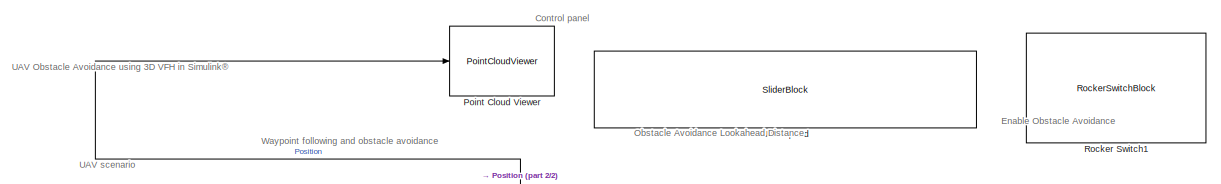
[diagram: root canvas - part 1/2, full width, top band]
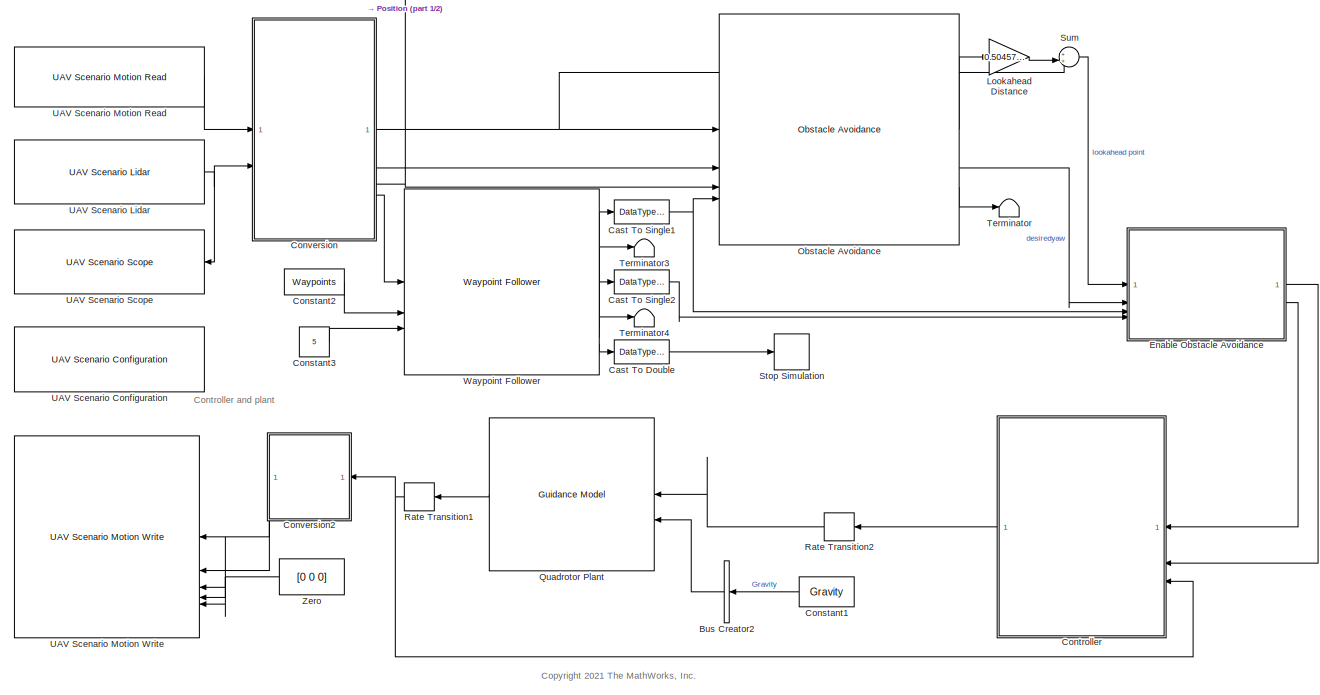
[diagram: root canvas - part 2/2, most of the canvas]
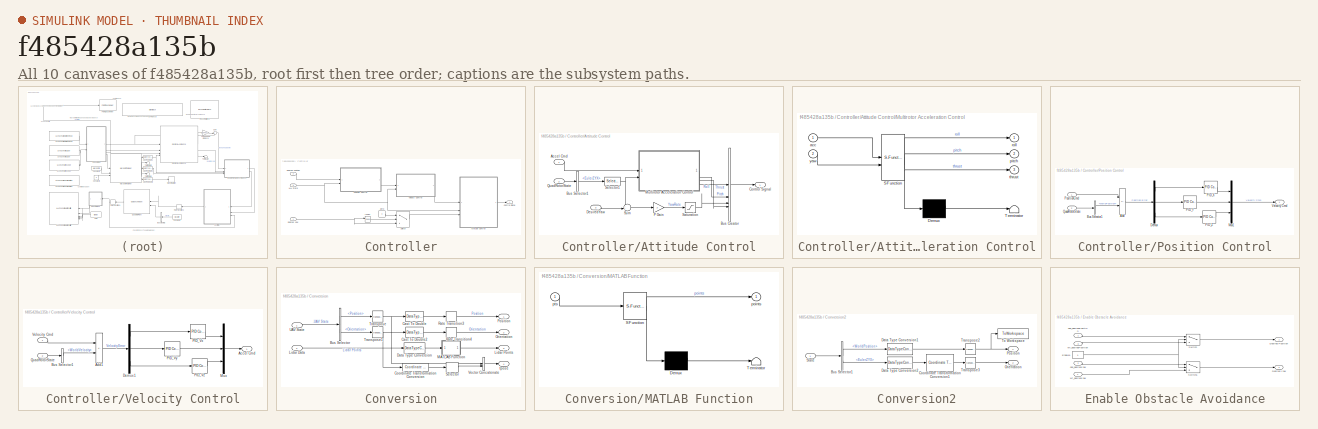
[diagram: thumbnail index - all 10 canvases of the model, root first then tree order]
MODEL slx_f485428a135b
KIND model
CONFIG AbsTol = auto
CONFIG EnableMultiTasking = off
CONFIG FixedStep = auto
CONFIG MaxStep = auto
CONFIG MinStep = auto
CONFIG RelTol = 1e-3
CONFIG SampleTimeConstraint = Unconstrained
CONFIG SolverName = VariableStepAuto
CONFIG StartTime = 0.0
CONFIG StopTime = inf
BLOCK [BusCreator] Bus Creator2
  DisplayOption = bar
  InheritFromInputs = on
  Inputs = 1
  NonVirtualBus = on
  OutDataTypeStr = Bus: uavGuidanceEnvironmentBus
BLOCK [DataTypeConversion] Cast To Double
  OutDataTypeStr = double
  RndMeth = Floor
  SaturateOnIntegerOverflow = off
BLOCK [DataTypeConversion] Cast To Single1
  OutDataTypeStr = single
  RndMeth = Floor
  SaturateOnIntegerOverflow = off
BLOCK [DataTypeConversion] Cast To Single2
  OutDataTypeStr = single
  RndMeth = Floor
  SaturateOnIntegerOverflow = off
BLOCK [Constant] Constant1
  AttributesFormatString = %<Value>
  OutDataTypeStr = single
  Value = Gravity
BLOCK [Constant] Constant2
  Value = Waypoints
BLOCK [Constant] Constant3
  Value = 5
BLOCK [SubSystem] Controller
BLOCK [SubSystem] Controller/Attitude Control
BLOCK [Inport] Controller/Attitude Control/Accel Cmd
BLOCK [BusCreator] Controller/Attitude Control/Bus Creator
  DisplayOption = bar
  InheritFromInputs = off
  Inputs = 4
  NonVirtualBus = on
  OutDataTypeStr = Bus: uavGuidanceControlBus
BLOCK [BusSelector] Controller/Attitude Control/Bus Selector1
  NameLocation = top
  OutputSignals = EulerZYX
BLOCK [Outport] Controller/Attitude Control/Control Signal
BLOCK [Inport] Controller/Attitude Control/DesiredYaw
  Port = 3
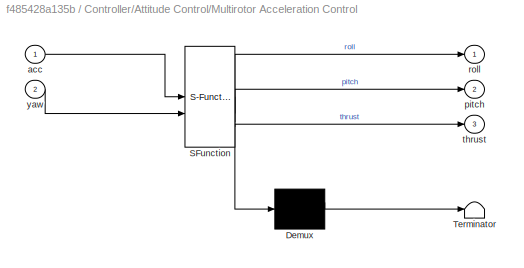
BLOCK [SubSystem] Controller/Attitude Control/Multirotor Acceleration Control
  ErrorFcn = Stateflow.Translate.translate
  PermitHierarchicalResolution = ExplicitOnly
  SFBlockType = MATLAB Function
  TreatAsAtomicUnit = on
BLOCK [Demux] Controller/Attitude Control/Multirotor Acceleration Control/ Demux 
  Outputs = 1
BLOCK [S-Function] Controller/Attitude Control/Multirotor Acceleration Control/ SFunction 
  EnableBusSupport = on
  FunctionName = sf_sfun
  Parameters = DroneMass,Gravity
  PortCounts = [2 4]
  SFcnIsStateOwnerBlock = off
  SFunctionDeploymentMode = off
  Tag = Stateflow S-Function 5
BLOCK [Terminator] Controller/Attitude Control/Multirotor Acceleration Control/ Terminator 
BLOCK [Inport] Controller/Attitude Control/Multirotor Acceleration Control/acc
BLOCK [Outport] Controller/Attitude Control/Multirotor Acceleration Control/pitch
  Port = 2
  VectorParamsAs1DForOutWhenUnconnected = off
BLOCK [Outport] Controller/Attitude Control/Multirotor Acceleration Control/roll
  VectorParamsAs1DForOutWhenUnconnected = off
BLOCK [Outport] Controller/Attitude Control/Multirotor Acceleration Control/thrust
  Port = 3
  VectorParamsAs1DForOutWhenUnconnected = off
BLOCK [Inport] Controller/Attitude Control/Multirotor Acceleration Control/yaw
  Port = 2
BLOCK [Gain] Controller/Attitude Control/P Gain
  Gain = 2
BLOCK [Inport] Controller/Attitude Control/QuadRotorState
  Port = 2
BLOCK [Saturate] Controller/Attitude Control/Saturation
BLOCK [Selector] Controller/Attitude Control/Selector1
  IndexOptions = Index vector (dialog)
  Indices = [1]
  InputPortWidth = 3
  OutputSizes = 1
BLOCK [Sum] Controller/Attitude Control/Sum
  Inputs = -+|
BLOCK [Outport] Controller/Control Signal
BLOCK [Inport] Controller/Desired Position
  Port = 2
BLOCK [Inport] Controller/Desired Yaw
BLOCK [RelationalOperator] Controller/IsNaN
  InputSameDT = off
  Operator = isNaN
  OutDataTypeStr = boolean
  RndMeth = Simplest
BLOCK [SubSystem] Controller/Position Control
BLOCK [Sum] Controller/Position Control/Add
  IconShape = rectangular
  Inputs = +-
BLOCK [BusSelector] Controller/Position Control/Bus Selector1
  NameLocation = top
  OutputSignals = WorldPosition
BLOCK [Demux] Controller/Position Control/Demux
  Outputs = 3
BLOCK [Mux] Controller/Position Control/Mux1
  DisplayOption = bar
  Inputs = 3
BLOCK [Reference] Controller/Position Control/PID_X  REF=slpidlib/PID Controller
  AttributesFormatString = P: %<P>, I: %<I>, D:%<D>
  SourceBlock = slpidlib/PID Controller
  SourceType = PID 1dof
BLOCK [Reference] Controller/Position Control/PID_Y  REF=slpidlib/PID Controller
  AttributesFormatString = P: %<P>, I: %<I>, D:%<D>
  SourceBlock = slpidlib/PID Controller
  SourceType = PID 1dof
BLOCK [Reference] Controller/Position Control/PID_Z  REF=slpidlib/PID Controller
  AttributesFormatString = P: %<P>, I: %<I>, D:%<D>
  SourceBlock = slpidlib/PID Controller
  SourceType = PID 1dof
BLOCK [Inport] Controller/Position Control/PositionCmd
BLOCK [Inport] Controller/Position Control/QuadRotorState
  Port = 2
BLOCK [Outport] Controller/Position Control/Velocity Cmd
BLOCK [Switch] Controller/Switch
  Criteria = u2 ~= 0
  InputSameDT = off
  SaturateOnIntegerOverflow = off
BLOCK [Inport] Controller/UAV State
  Port = 3
BLOCK [SubSystem] Controller/Velocity Control
BLOCK [Outport] Controller/Velocity Control/Accel Cmd
BLOCK [Sum] Controller/Velocity Control/Add1
  IconShape = rectangular
  Inputs = +-
BLOCK [BusSelector] Controller/Velocity Control/Bus Selector1
  NameLocation = top
  OutputSignals = WorldVelocity
BLOCK [Demux] Controller/Velocity Control/Demux1
  Outputs = 3
BLOCK [Mux] Controller/Velocity Control/Mux
  DisplayOption = bar
  Inputs = 3
BLOCK [Reference] Controller/Velocity Control/PID_Vx  REF=slpidlib/PID Controller
  AttributesFormatString = P: %<P>, I: %<I>, D:%<D>
  SourceBlock = slpidlib/PID Controller
  SourceType = PID 1dof
BLOCK [Reference] Controller/Velocity Control/PID_Vy  REF=slpidlib/PID Controller
  AttributesFormatString = P: %<P>, I: %<I>, D:%<D>
  SourceBlock = slpidlib/PID Controller
  SourceType = PID 1dof
BLOCK [Reference] Controller/Velocity Control/PID_Vz  REF=slpidlib/PID Controller
  AttributesFormatString = P: %<P>, I: %<I>, D:%<D>
  SourceBlock = slpidlib/PID Controller
  SourceType = PID 1dof
BLOCK [Inport] Controller/Velocity Control/QuadRotorState
  Port = 2
BLOCK [Inport] Controller/Velocity Control/Velocity Cmd
BLOCK [Constant] Controller/Zero
  OutDataTypeStr = Inherit: Inherit via back propagation
  Value = 0
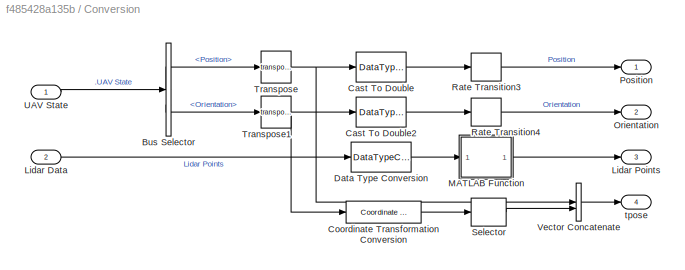
BLOCK [SubSystem] Conversion
BLOCK [BusSelector] Conversion/Bus Selector
  OutputSignals = Position,Orientation
BLOCK [DataTypeConversion] Conversion/Cast To Double
  OutDataTypeStr = single
  RndMeth = Floor
  SaturateOnIntegerOverflow = off
BLOCK [DataTypeConversion] Conversion/Cast To Double2
  OutDataTypeStr = single
  RndMeth = Floor
  SaturateOnIntegerOverflow = off
BLOCK [Reference] Conversion/Coordinate Transformation Conversion  REF=robotcorelib/Coordinate Transformation Conversion
  SourceBlock = robotcorelib/Coordinate Transformation Conversion
  SourceType = robotics.slcore.internal.block.CoordinateTransformationConversion
BLOCK [DataTypeConversion] Conversion/Data Type Conversion
  OutDataTypeStr = single
  RndMeth = Floor
  SaturateOnIntegerOverflow = off
BLOCK [Inport] Conversion/Lidar Data
  Port = 2
BLOCK [Outport] Conversion/Lidar Points
  Port = 3
BLOCK [SubSystem] Conversion/MATLAB Function
  ErrorFcn = Stateflow.Translate.translate
  PermitHierarchicalResolution = ExplicitOnly
  SFBlockType = MATLAB Function
  TreatAsAtomicUnit = on
BLOCK [Demux] Conversion/MATLAB Function/ Demux 
  Outputs = 1
BLOCK [S-Function] Conversion/MATLAB Function/ SFunction 
  EnableBusSupport = on
  FunctionName = sf_sfun
  PortCounts = [1 2]
  SFcnIsStateOwnerBlock = off
  SFunctionDeploymentMode = off
  Tag = Stateflow S-Function 2
BLOCK [Terminator] Conversion/MATLAB Function/ Terminator 
BLOCK [Outport] Conversion/MATLAB Function/points
BLOCK [Inport] Conversion/MATLAB Function/pts
BLOCK [Outport] Conversion/Orientation
  Port = 2
BLOCK [Outport] Conversion/Position
BLOCK [RateTransition] Conversion/Rate Transition3
  OutPortSampleTime = .1
BLOCK [RateTransition] Conversion/Rate Transition4
  OutPortSampleTime = 0.1
BLOCK [Selector] Conversion/Selector
  IndexOptions = Index vector (dialog)
  Indices = [1]
  InputPortWidth = 3
  OutputSizes = 1
BLOCK [Math] Conversion/Transpose
  Operator = transpose
BLOCK [Math] Conversion/Transpose1
  Operator = transpose
BLOCK [Inport] Conversion/UAV State
BLOCK [Concatenate] Conversion/Vector Concatenate
BLOCK [Outport] Conversion/tpose
  Port = 4
BLOCK [SubSystem] Conversion2
BLOCK [BusSelector] Conversion2/Bus Selector1
  OutputSignals = WorldPosition,EulerZYX
BLOCK [Reference] Conversion2/Coordinate Transformation Conversion1  REF=robotcorelib/Coordinate Transformation Conversion
  SourceBlock = robotcorelib/Coordinate Transformation Conversion
  SourceType = robotics.slcore.internal.block.CoordinateTransformationConversion
BLOCK [DataTypeConversion] Conversion2/Data Type Conversion1
  OutDataTypeStr = double
  RndMeth = Floor
  SaturateOnIntegerOverflow = off
BLOCK [DataTypeConversion] Conversion2/Data Type Conversion2
  OutDataTypeStr = double
  RndMeth = Floor
  SaturateOnIntegerOverflow = off
BLOCK [Outport] Conversion2/Orientation
  Port = 2
BLOCK [Outport] Conversion2/Position
BLOCK [Inport] Conversion2/State
BLOCK [ToWorkspace] Conversion2/To Workspace
  FixptAsFi = on
  MaxDataPoints = inf
  SampleTime = -1
  VariableName = trajectoryPoints
BLOCK [Math] Conversion2/Transpose2
  Operator = transpose
BLOCK [Math] Conversion2/Transpose3
  Operator = transpose
BLOCK [SubSystem] Enable Obstacle Avoidance
BLOCK [Outport] Enable Obstacle Avoidance/Desired Position
BLOCK [Outport] Enable Obstacle Avoidance/Desired Yaw
  Port = 2
BLOCK [Constant] Enable Obstacle Avoidance/Enable1
BLOCK [Switch] Enable Obstacle Avoidance/Switch
  Criteria = u2 > Threshold
  InputSameDT = off
  SaturateOnIntegerOverflow = off
BLOCK [Switch] Enable Obstacle Avoidance/Switch1
  Criteria = u2 > Threshold
  InputSameDT = off
  SaturateOnIntegerOverflow = off
BLOCK [Inport] Enable Obstacle Avoidance/obs_desiredPosition
BLOCK [Inport] Enable Obstacle Avoidance/obs_desiredYaw
  Port = 2
BLOCK [Inport] Enable Obstacle Avoidance/wf_desiredPosition
  Port = 3
BLOCK [Inport] Enable Obstacle Avoidance/wf_desiredYaw
  Port = 4
BLOCK [Gain] Lookahead Distance
  Gain = 0.5045735304323687
BLOCK [Reference] Obstacle Avoidance  REF=uavalgslib/Obstacle Avoidance
  SourceBlock = uavalgslib/Obstacle Avoidance
  SourceType = uav.sluav.internal.system.ObstacleAvoidance
BLOCK [PointCloudViewer] Point Cloud Viewer
  FigPos = [658 892 413 361]
  ScopeSpecificationString = vipscopes.PointCloudViewerScopeCfg('CurrentConfiguration', extmgr.ConfigurationSet(extmgr.Configuration('Core','General UI',true),extmgr.Configuration('Core','Source UI',true),extmgr.Configuration('Sources','WiredSimulink',true),extmgr.Configuration('Visuals','Point Cloud',true)),'Version','2023a','Position',[658 547 413 361])
BLOCK [Reference] Quadrotor Plant  REF=uavalgslib/Guidance Model
  SourceBlock = uavalgslib/Guidance Model
  SourceType = Guidance Model
BLOCK [RateTransition] Rate Transition1
  OutPortSampleTime = UAVSampleTime
BLOCK [RateTransition] Rate Transition2
  OutPortSampleTime = UAVSampleTime
BLOCK [RockerSwitchBlock] Rocker Switch1
  LabelPosition = Hide
  NameLocation = left
BLOCK [Stop] Stop Simulation
BLOCK [Sum] Sum
  Inputs = ++|
BLOCK [Terminator] Terminator
BLOCK [Terminator] Terminator3
BLOCK [Terminator] Terminator4
BLOCK [Reference] UAV Scenario Configuration  REF=uavsimlib/UAV Scenario Configuration
  Priority = -1
  SourceBlock = uavsimlib/UAV Scenario Configuration
  SourceType = UAV Scenario Configuration
BLOCK [Reference] UAV Scenario Lidar  REF=uavsimlib/UAV Scenario Lidar
  Priority = 1
  SourceBlock = uavsimlib/UAV Scenario Lidar
  SourceType = UAV Scenario Lidar
BLOCK [Reference] UAV Scenario Motion Read  REF=uavsimlib/UAV Scenario Motion Read
  Priority = 1
  SourceBlock = uavsimlib/UAV Scenario Motion Read
  SourceType = UAV Scenario Motion Read
BLOCK [Reference] UAV Scenario Motion Write  REF=uavsimlib/UAV Scenario Motion Write
  Priority = 0
  SourceBlock = uavsimlib/UAV Scenario Motion Write
  SourceType = UAV Scenario Motion Write
BLOCK [Reference] UAV Scenario Scope  REF=uavsimlib/UAV Scenario Scope
  Priority = 1
  SourceBlock = uavsimlib/UAV Scenario Scope
  SourceType = UAV Scenario Scope
BLOCK [SliderBlock] UAV Speed
  LabelPosition = Hide
  ScaleMax = .8
  ScaleMin = 0.0
  TickInterval = .2
BLOCK [Reference] Waypoint Follower  REF=uavalgslib/Waypoint Follower
  SourceBlock = uavalgslib/Waypoint Follower
  SourceType = uav.sluav.internal.system.WaypointFollower
BLOCK [Constant] Zero
  OutDataTypeStr = Inherit: Inherit via back propagation
  Value = [0 0 0]
ANNOTATION (root): UAV Obstacle Avoidance using 3D VFH in Simulink®
ANNOTATION (root): Control panel
ANNOTATION (root): Controller and plant
ANNOTATION (root): <copyright redacted>
ANNOTATION (root): Enable Obstacle Avoidance
ANNOTATION (root): Obstacle Avoidance Lookahead Distance
ANNOTATION (root): UAV scenario
ANNOTATION (root): Waypoint following and obstacle avoidance
LINE Bus Creator2:1 -> Quadrotor Plant:2
LINE Cast To Double:1 -> Stop Simulation:1
NET Cast To Single1:1 -> Enable Obstacle Avoidance:3, Obstacle Avoidance:4
LINE Cast To Single2:1 -> Enable Obstacle Avoidance:4
LINE Constant1:1 -> Bus Creator2:1
LINE Constant2:1 -> Waypoint Follower:2
LINE Constant3:1 -> Waypoint Follower:3
LINE Controller/Attitude Control/Accel Cmd:1 -> Controller/Attitude Control/Multirotor Acceleration Control:1
LINE Controller/Attitude Control/Bus Creator:1 -> Controller/Attitude Control/Control Signal:1
LINE Controller/Attitude Control/Bus Selector1:1 -> Controller/Attitude Control/Selector1:1
LINE Controller/Attitude Control/DesiredYaw:1 -> Controller/Attitude Control/Sum:2
LINE Controller/Attitude Control/Multirotor Acceleration Control:1 -> Controller/Attitude Control/Bus Creator:1
LINE Controller/Attitude Control/Multirotor Acceleration Control:2 -> Controller/Attitude Control/Bus Creator:2
LINE Controller/Attitude Control/Multirotor Acceleration Control:3 -> Controller/Attitude Control/Bus Creator:4
LINE Controller/Attitude Control/P Gain:1 -> Controller/Attitude Control/Saturation:1
LINE Controller/Attitude Control/QuadRotorState:1 -> Controller/Attitude Control/Bus Selector1:1
LINE Controller/Attitude Control/Saturation:1 -> Controller/Attitude Control/Bus Creator:3
NET Controller/Attitude Control/Selector1:1 -> Controller/Attitude Control/Multirotor Acceleration Control:2, Controller/Attitude Control/Sum:1
LINE Controller/Attitude Control/Sum:1 -> Controller/Attitude Control/P Gain:1
LINE Controller/Attitude Control:1 -> Controller/Control Signal:1
LINE Controller/Desired Position:1 -> Controller/Position Control:1
NET Controller/Desired Yaw:1 -> Controller/IsNaN:1, Controller/Switch:3
LINE Controller/IsNaN:1 -> Controller/Switch:2
LINE Controller/Position Control/Add:1 -> Controller/Position Control/Demux:1
LINE Controller/Position Control/Bus Selector1:1 -> Controller/Position Control/Add:2
LINE Controller/Position Control/Demux:1 -> Controller/Position Control/PID_X:1
LINE Controller/Position Control/Demux:2 -> Controller/Position Control/PID_Y:1
LINE Controller/Position Control/Demux:3 -> Controller/Position Control/PID_Z:1
LINE Controller/Position Control/Mux1:1 -> Controller/Position Control/Velocity Cmd:1
LINE Controller/Position Control/PID_X:1 -> Controller/Position Control/Mux1:1
LINE Controller/Position Control/PID_Y:1 -> Controller/Position Control/Mux1:2
LINE Controller/Position Control/PID_Z:1 -> Controller/Position Control/Mux1:3
LINE Controller/Position Control/PositionCmd:1 -> Controller/Position Control/Add:1
LINE Controller/Position Control/QuadRotorState:1 -> Controller/Position Control/Bus Selector1:1
LINE Controller/Position Control:1 -> Controller/Velocity Control:1
LINE Controller/Switch:1 -> Controller/Attitude Control:3
NET Controller/UAV State:1 -> Controller/Attitude Control:2, Controller/Position Control:2, Controller/Velocity Control:2
LINE Controller/Velocity Control/Add1:1 -> Controller/Velocity Control/Demux1:1
LINE Controller/Velocity Control/Bus Selector1:1 -> Controller/Velocity Control/Add1:2
LINE Controller/Velocity Control/Demux1:1 -> Controller/Velocity Control/PID_Vx:1
LINE Controller/Velocity Control/Demux1:2 -> Controller/Velocity Control/PID_Vy:1
LINE Controller/Velocity Control/Demux1:3 -> Controller/Velocity Control/PID_Vz:1
LINE Controller/Velocity Control/Mux:1 -> Controller/Velocity Control/Accel Cmd:1
LINE Controller/Velocity Control/PID_Vx:1 -> Controller/Velocity Control/Mux:1
LINE Controller/Velocity Control/PID_Vy:1 -> Controller/Velocity Control/Mux:2
LINE Controller/Velocity Control/PID_Vz:1 -> Controller/Velocity Control/Mux:3
LINE Controller/Velocity Control/QuadRotorState:1 -> Controller/Velocity Control/Bus Selector1:1
LINE Controller/Velocity Control/Velocity Cmd:1 -> Controller/Velocity Control/Add1:1
LINE Controller/Velocity Control:1 -> Controller/Attitude Control:1
LINE Controller/Zero:1 -> Controller/Switch:1
LINE Controller:1 -> Rate Transition2:1
LINE Conversion/Bus Selector:1 -> Conversion/Transpose:1
LINE Conversion/Bus Selector:2 -> Conversion/Transpose1:1
LINE Conversion/Cast To Double2:1 -> Conversion/Rate Transition4:1
LINE Conversion/Cast To Double:1 -> Conversion/Rate Transition3:1
LINE Conversion/Coordinate Transformation Conversion:1 -> Conversion/Selector:1
LINE Conversion/Data Type Conversion:1 -> Conversion/MATLAB Function:1
LINE Conversion/Lidar Data:1 -> Conversion/Data Type Conversion:1
LINE Conversion/MATLAB Function:1 -> Conversion/Lidar Points:1
LINE Conversion/Rate Transition3:1 -> Conversion/Position:1
LINE Conversion/Rate Transition4:1 -> Conversion/Orientation:1
LINE Conversion/Selector:1 -> Conversion/Vector Concatenate:2
NET Conversion/Transpose1:1 -> Conversion/Cast To Double2:1, Conversion/Coordinate Transformation Conversion:1
NET Conversion/Transpose:1 -> Conversion/Cast To Double:1, Conversion/Vector Concatenate:1
LINE Conversion/UAV State:1 -> Conversion/Bus Selector:1
LINE Conversion/Vector Concatenate:1 -> Conversion/tpose:1
LINE Conversion2/Bus Selector1:1 -> Conversion2/Data Type Conversion1:1
LINE Conversion2/Bus Selector1:2 -> Conversion2/Data Type Conversion2:1
LINE Conversion2/Coordinate Transformation Conversion1:1 -> Conversion2/Transpose3:1
LINE Conversion2/Data Type Conversion1:1 -> Conversion2/Transpose2:1
LINE Conversion2/Data Type Conversion2:1 -> Conversion2/Coordinate Transformation Conversion1:1
LINE Conversion2/State:1 -> Conversion2/Bus Selector1:1
NET Conversion2/Transpose2:1 -> Conversion2/Position:1, Conversion2/To Workspace:1
LINE Conversion2/Transpose3:1 -> Conversion2/Orientation:1
LINE Conversion2:1 -> UAV Scenario Motion Write:1
LINE Conversion2:2 -> UAV Scenario Motion Write:2
NET Conversion:1 -> Obstacle Avoidance:1, Sum:1
LINE Conversion:2 -> Obstacle Avoidance:2
NET Conversion:3 -> Obstacle Avoidance:3, Point Cloud Viewer:1
LINE Conversion:4 -> Waypoint Follower:1
NET Enable Obstacle Avoidance/Enable1:1 -> Enable Obstacle Avoidance/Switch1:2, Enable Obstacle Avoidance/Switch:2
LINE Enable Obstacle Avoidance/Switch1:1 -> Enable Obstacle Avoidance/Desired Yaw:1
LINE Enable Obstacle Avoidance/Switch:1 -> Enable Obstacle Avoidance/Desired Position:1
LINE Enable Obstacle Avoidance/obs_desiredPosition:1 -> Enable Obstacle Avoidance/Switch:1
LINE Enable Obstacle Avoidance/obs_desiredYaw:1 -> Enable Obstacle Avoidance/Switch1:1
LINE Enable Obstacle Avoidance/wf_desiredPosition:1 -> Enable Obstacle Avoidance/Switch:3
LINE Enable Obstacle Avoidance/wf_desiredYaw:1 -> Enable Obstacle Avoidance/Switch1:3
LINE Enable Obstacle Avoidance:1 -> Controller:2
LINE Enable Obstacle Avoidance:2 -> Controller:1
LINE Lookahead Distance:1 -> Sum:2
LINE Obstacle Avoidance:1 -> Lookahead Distance:1
LINE Obstacle Avoidance:2 -> Enable Obstacle Avoidance:2
LINE Obstacle Avoidance:3 -> Terminator:1
LINE Quadrotor Plant:1 -> Rate Transition1:1
NET Rate Transition1:1 -> Controller:3, Conversion2:1
LINE Rate Transition2:1 -> Quadrotor Plant:1
LINE Sum:1 -> Enable Obstacle Avoidance:1
NET UAV Scenario Lidar:1 -> Conversion:2, UAV Scenario Scope:1
LINE UAV Scenario Motion Read:1 -> Conversion:1
LINE Waypoint Follower:1 -> Cast To Single1:1
LINE Waypoint Follower:2 -> Terminator3:1
LINE Waypoint Follower:3 -> Cast To Single2:1
LINE Waypoint Follower:4 -> Terminator4:1
LINE Waypoint Follower:5 -> Cast To Double:1
NET Zero:1 -> UAV Scenario Motion Write:3, UAV Scenario Motion Write:4, UAV Scenario Motion Write:5
note: NET lines group one-source signal fan-out (src -> all destinations, sorted); 1:1 wires keep LINE
CHART Conversion/MATLAB Function states=1 transitions=1
  STATE_LABEL 'eML_blk_kernel()'
  STATE_LABEL 'SCRIPT:\nfunction points = lidarToPoints(pts)\n\nxLidar = reshape(pts(:,:,1),[],1);\nyLidar = reshape(pts(:,:,2),[],1);\nzLidar = reshape(pts(:,:,3),[],1);\n    \npoints = [xLidar,yLidar,zLidar];\n\n'
CHART Controller/Attitude Control/Multirotor Acceleration Control states=1 transitions=1
  STATE_LABEL 'eML_blk_kernel()'
  STATE_LABEL 'SCRIPT:\nfunction [roll, pitch, thrust] = accControl(acc, yaw, DroneMass, Gravity)\n\n    xddot = acc(1);\n    yddot = acc(2);\n    zddot = acc(3);\n    \n    pitch = atan2((-xddot*cos(yaw)-yddot*sin(yaw)), ( -zddot + Gravity));\n    roll = atan2(((-xddot*sin(yaw)+yddot*cos(yaw))*cos(pitch)), (-zddot+Gravity));\n    \n    roll_limit = 25*pi/180;\n    pitch_limit = 25*pi/180;\n    \n    roll = min(roll_limit, m...<+157ch>'
CHART  states=0 transitions=0
CHART  states=0 transitions=0
